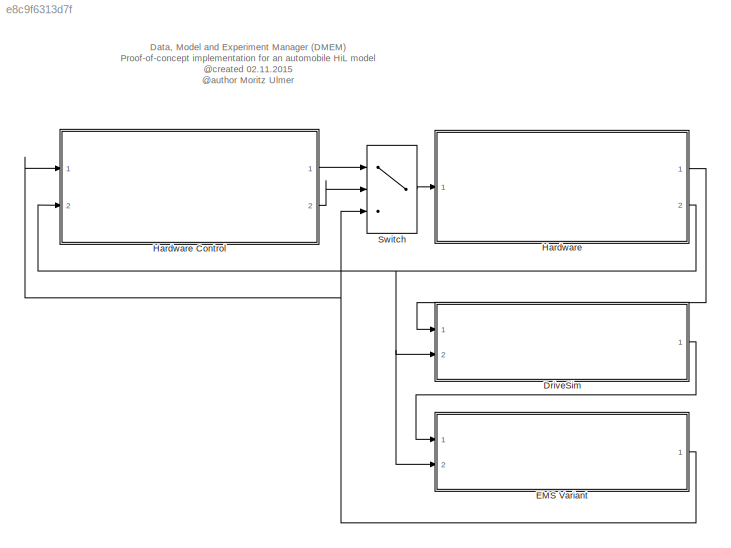
MODEL slx_e8c9f6313d7f
KIND model
BLOCK [ModelReference] DriveSim
  CopyOfModelName = DriveSimV1.slx
  DefaultDataLogging = on
  ModelNameDialog = DriveSimV1.slx
  ModelReferenceVersion = 1.48
  Ports = [2, 1]
  Variant = on
BLOCK [ModelReference] EMS Variant
  AttributesFormatString = %<ActiveVariant>
  CopyOfModelName = EmsM2Eq5.mdl
  DefaultDataLogging = on
  ModelNameDialog = EmsM2Eq5.mdl
  ModelReferenceVersion = 1.26
  Ports = [2, 1]
  Variant = on
BLOCK [ModelReference] Hardware
  CopyOfModelName = HardwareNull
  DefaultDataLogging = on
  ModelNameDialog = HardwareNull
  ModelReferenceVersion = 1.2
  Ports = [1, 2]
  Variant = on
BLOCK [ModelReference] Hardware Control
  AttributesFormatString = %<ActiveVariant>
  CopyOfModelName = HardwareControlSample
  DialogController = Simulink.DDGSource
  ModelNameDialog = HardwareControlSample
  ModelReferenceVersion = 1.23
  Ports = [2, 2]
  Variant = on
BLOCK [Switch] Switch
  Criteria = u2 > Threshold
  InputSameDT = off
  SaturateOnIntegerOverflow = off
ANNOTATION (root): Data, Model and Experiment Manager (DMEM) Proof-of-concept implementation for an automobile HiL model @created 02.11.2015 @author Moritz Ulmer
LINE DriveSim:1 -> EMS Variant:1
NET EMS Variant:1 -> Hardware Control:1, Switch:3
LINE Hardware Control:1 -> Switch:1
LINE Hardware Control:2 -> Switch:2
LINE Hardware:1 -> DriveSim:1
NET Hardware:2 -> DriveSim:2, EMS Variant:2, Hardware Control:2
LINE Switch:1 -> Hardware:1
note: NET lines group one-source signal fan-out (src -> all destinations, sorted); 1:1 wires keep LINE
